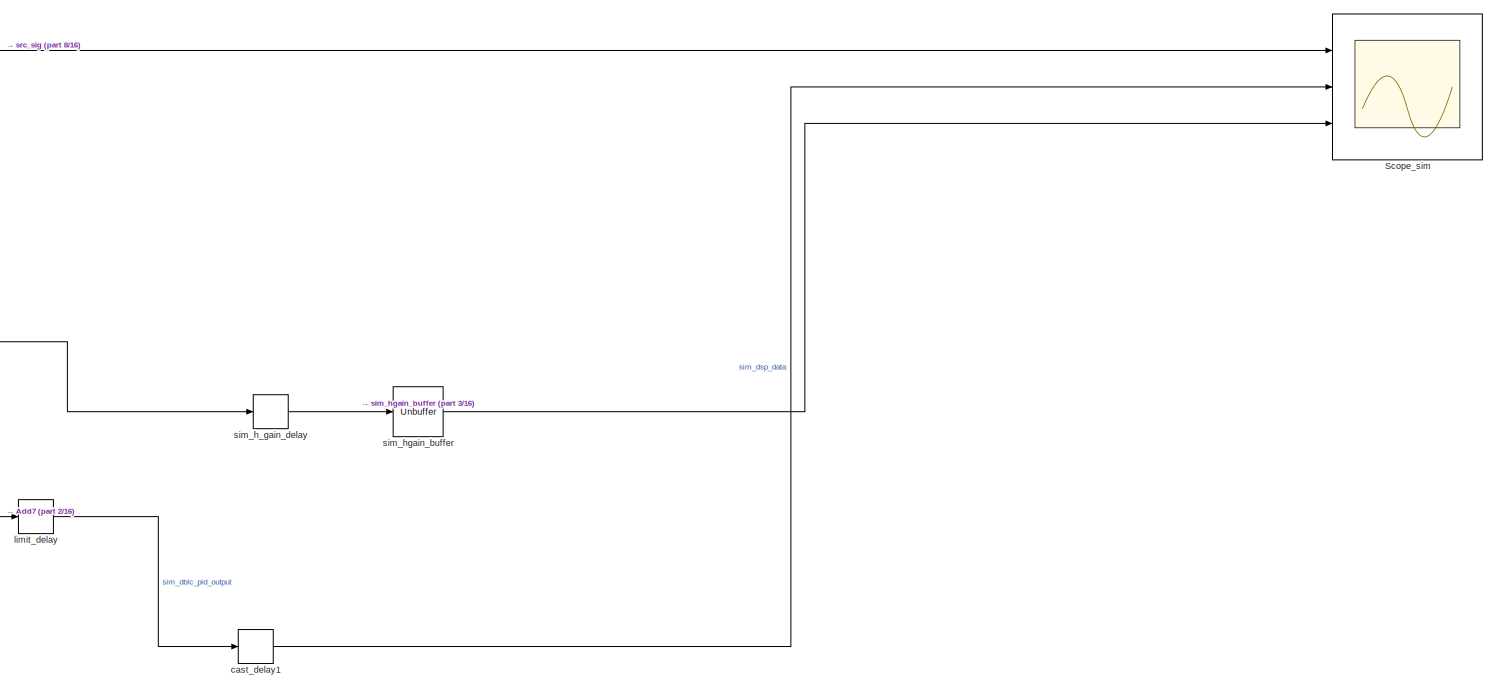
[diagram: root canvas - part 1/16, top right region]
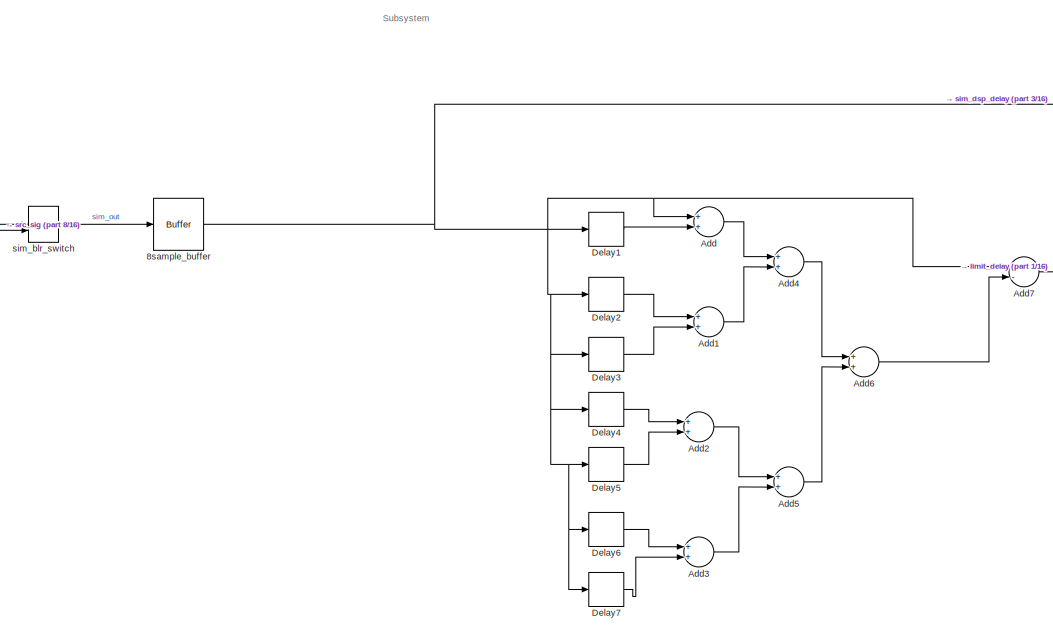
[diagram: root canvas - part 2/16, top center region]
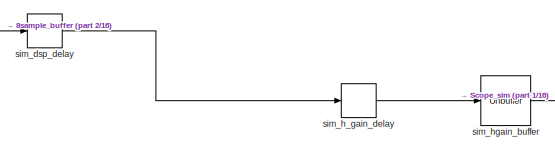
[diagram: root canvas - part 3/16, top center region]
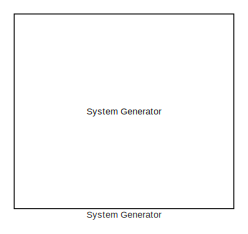
[diagram: root canvas - part 4/16, top left region]
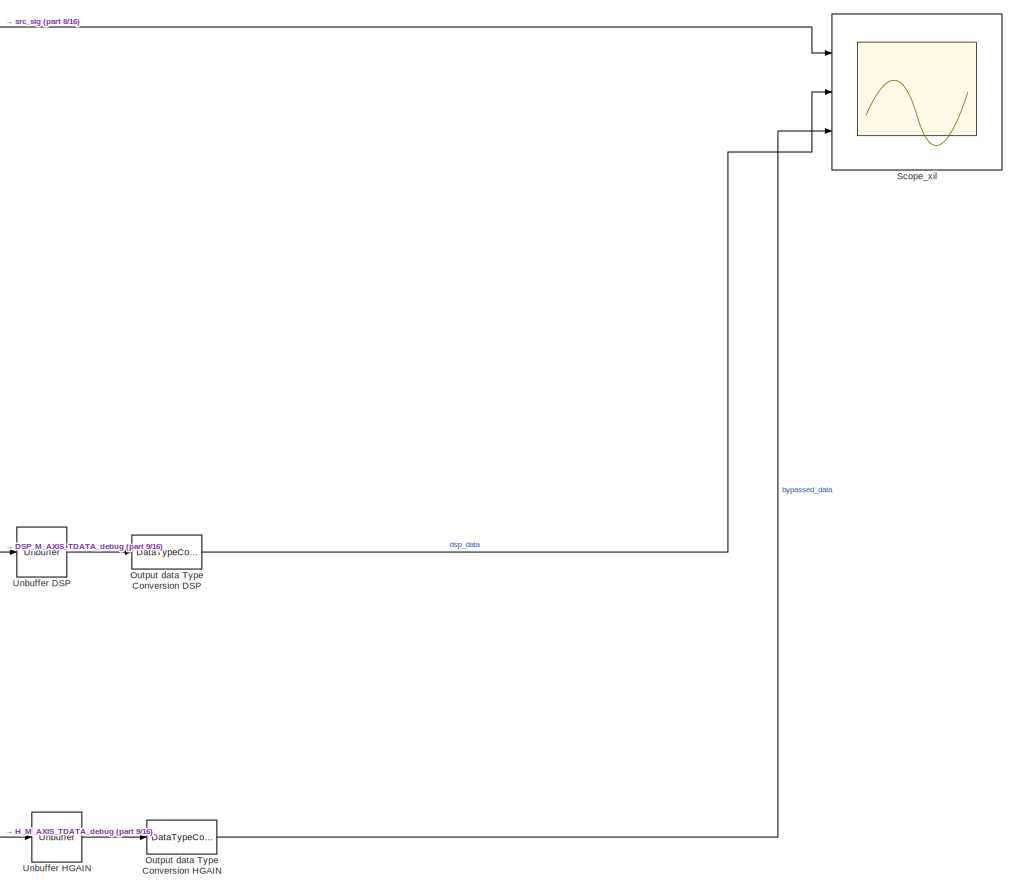
[diagram: root canvas - part 5/16, middle right region]
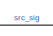
[diagram: root canvas - part 6/16, central region]
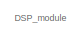
[diagram: root canvas - part 7/16, middle left region]
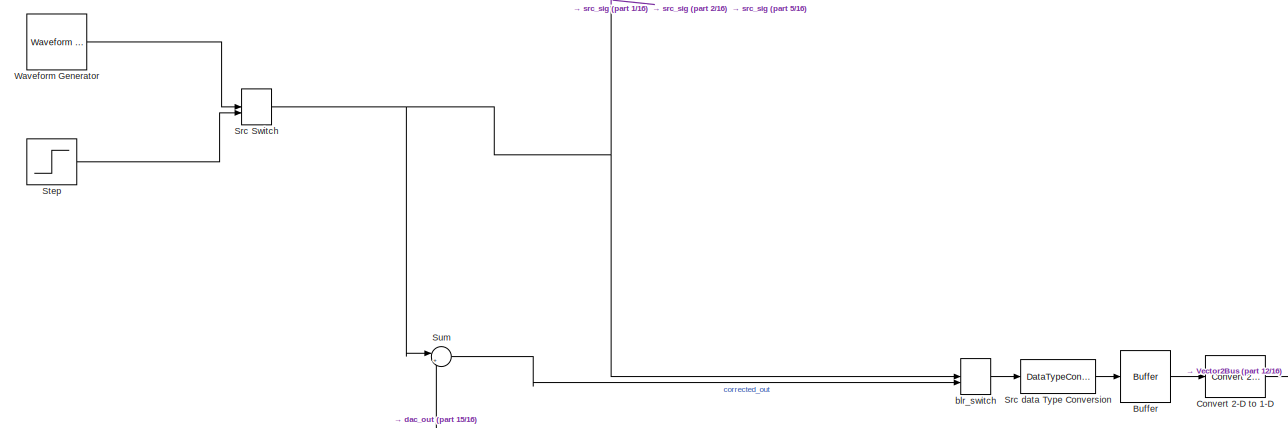
[diagram: root canvas - part 8/16, middle left region]
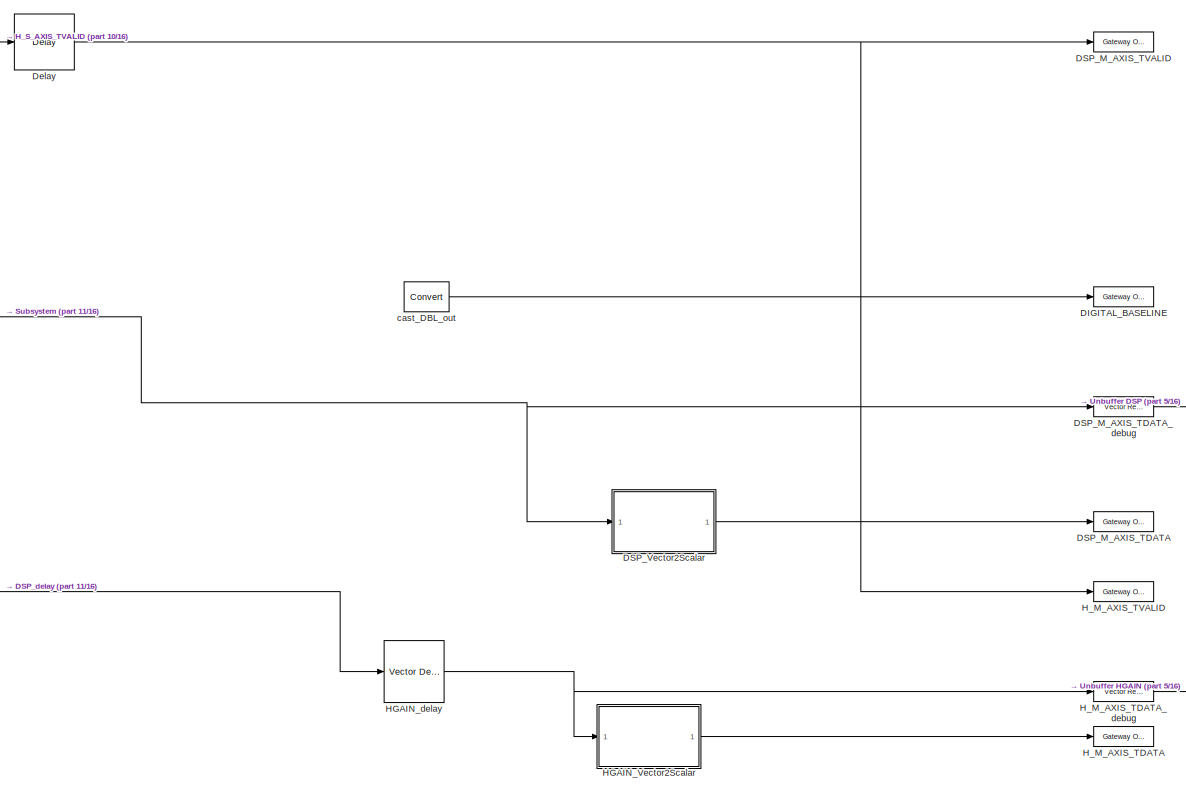
[diagram: root canvas - part 9/16, middle right region]
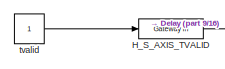
[diagram: root canvas - part 10/16, middle left region]
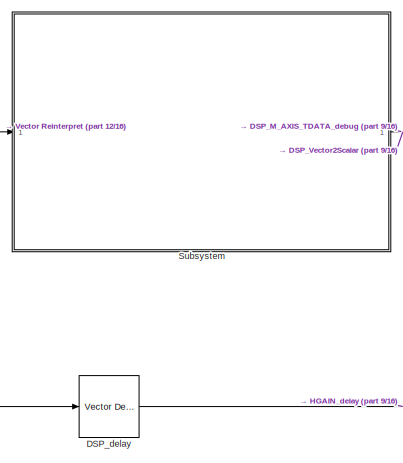
[diagram: root canvas - part 11/16, central region]
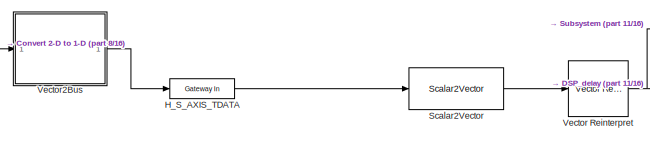
[diagram: root canvas - part 12/16, middle left region]
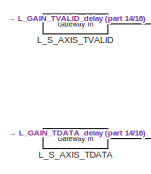
[diagram: root canvas - part 13/16, bottom left region]
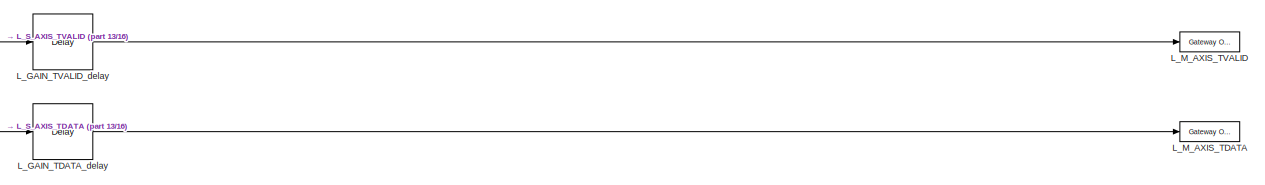
[diagram: root canvas - part 14/16, bottom right region]
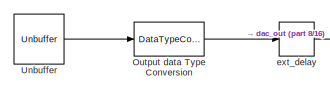
[diagram: root canvas - part 15/16, bottom right region]
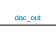
[diagram: root canvas - part 16/16, bottom center region]
MODEL slx_3c7e226fa12a
KIND model
CONFIG AbsTol = auto
CONFIG EnableMultiTasking = off
CONFIG FixedStep = auto
CONFIG MaxStep = auto
CONFIG MinStep = auto
CONFIG RelTol = 1e-3
CONFIG SampleTimeConstraint = Unconstrained
CONFIG Solver = VariableStepAuto
CONFIG SolverName = VariableStepAuto
CONFIG StartTime = 0.0
CONFIG StopTime = 100e-6
BLOCK [Reference]  System Generator  REF=xbsIndex_r4/ System Generator
  AttributesFormatString = System\nGenerator
  Ports = []
  SourceBlock = xbsIndex_r4/ System Generator
  SourceType = Xilinx System Generator Block
  Tag = genX
  UserDataPersistent = on
BLOCK [Buffer] 8sample_buffer
  Commented = on
  N = 8
  OutputFrames = off
BLOCK [Sum] Add
  Commented = on
  InputSameDT = off
  OutDataTypeStr = Inherit: Inherit via internal rule
  Ports = [2, 1]
  SaturateOnIntegerOverflow = off
BLOCK [Sum] Add1
  Commented = on
  InputSameDT = off
  OutDataTypeStr = Inherit: Inherit via internal rule
  Ports = [2, 1]
  SaturateOnIntegerOverflow = off
BLOCK [Sum] Add2
  Commented = on
  InputSameDT = off
  OutDataTypeStr = Inherit: Inherit via internal rule
  Ports = [2, 1]
  SaturateOnIntegerOverflow = off
BLOCK [Sum] Add3
  Commented = on
  InputSameDT = off
  OutDataTypeStr = Inherit: Inherit via internal rule
  Ports = [2, 1]
  SaturateOnIntegerOverflow = off
BLOCK [Sum] Add4
  Commented = on
  InputSameDT = off
  OutDataTypeStr = Inherit: Inherit via internal rule
  Ports = [2, 1]
  SaturateOnIntegerOverflow = off
BLOCK [Sum] Add5
  Commented = on
  InputSameDT = off
  OutDataTypeStr = Inherit: Inherit via internal rule
  Ports = [2, 1]
  SaturateOnIntegerOverflow = off
BLOCK [Sum] Add6
  Commented = on
  InputSameDT = off
  OutDataTypeStr = Inherit: Inherit via internal rule
  Ports = [2, 1]
  SaturateOnIntegerOverflow = off
BLOCK [Sum] Add7
  Commented = on
  InputSameDT = off
  Inputs = +-
  OutDataTypeStr = Inherit: Inherit via internal rule
  Ports = [2, 1]
  SaturateOnIntegerOverflow = off
BLOCK [Buffer] Buffer
  N = 8
  OutputFrames = off
BLOCK [Reference] Convert 2-D to 1-D  REF=dspsigattribs/Convert 2-D to 1-D
  Ports = [1, 1]
  SourceBlock = dspsigattribs/Convert 2-D to 1-D
  SourceProductBaseCode = DS
  SourceProductName = DSP System Toolbox
  SourceType = Convert 2-D to 1-D
BLOCK [Reference] DIGITAL_BASELINE  REF=xbsIndex_r4/Gateway Out
  Commented = on
  Ports = [1, 1]
  SourceBlock = xbsIndex_r4/Gateway Out
  SourceType = Xilinx Gateway Out Block
BLOCK [Reference] DSP_M_AXIS_TDATA  REF=xbsIndex_r4/Gateway Out
  Ports = [1, 1]
  SourceBlock = xbsIndex_r4/Gateway Out
  SourceType = Xilinx Gateway Out Block
BLOCK [Reference] DSP_M_AXIS_TDATA_debug  REF=xrbsSSR_Library/Vector Real Gateway Out
  Ports = [1, 1]
  SourceBlock = xrbsSSR_Library/Vector Real Gateway Out
  SourceProductName = Xilinx SSR Blockset
  SourceType = Xilinx Vector Gateway Out Block
BLOCK [Reference] DSP_M_AXIS_TVALID  REF=xbsIndex_r4/Gateway Out
  Ports = [1, 1]
  SourceBlock = xbsIndex_r4/Gateway Out
  SourceType = Xilinx Gateway Out Block
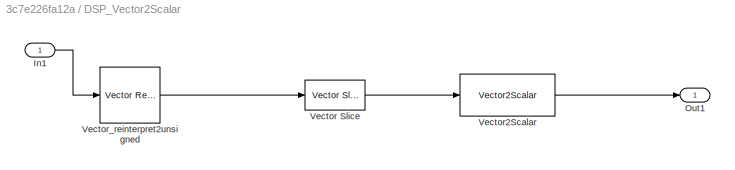
BLOCK [SubSystem] DSP_Vector2Scalar
  Ports = [1, 1]
  RequestExecContextInheritance = off
BLOCK [Inport] DSP_Vector2Scalar/In1
  IconDisplay = Port number
BLOCK [Outport] DSP_Vector2Scalar/Out1
  IconDisplay = Port number
BLOCK [Reference] DSP_Vector2Scalar/Vector Slice  REF=xrbsSSR_Library/Vector Slice
  Ports = [1, 1]
  SourceBlock = xrbsSSR_Library/Vector Slice
  SourceProductName = Xilinx SSR Blockset
  SourceType = Xilinx Vector Bit Slice Extractor Block
BLOCK [Reference] DSP_Vector2Scalar/Vector2Scalar  REF=xrbsSSR_Library/Vector2Scalar
  Ports = [1, 1]
  SourceBlock = xrbsSSR_Library/Vector2Scalar
  SourceProductName = Xilinx SSR Blockset
  SourceType = Xilinx Vector2Scalar Block
BLOCK [Reference] DSP_Vector2Scalar/Vector_reinterpret2unsigned  REF=xrbsSSR_Library/Vector Reinterpret
  Ports = [1, 1]
  SourceBlock = xrbsSSR_Library/Vector Reinterpret
  SourceProductName = Xilinx SSR Blockset
  SourceType = Xilinx Vector Type Reinterpreter Block
BLOCK [Reference] DSP_delay  REF=xrbsSSR_Library/Vector Delay
  Ports = [1, 1]
  SourceBlock = xrbsSSR_Library/Vector Delay
  SourceProductName = Xilinx SSR Blockset
  SourceType = Xilinx Vector Delay Block
BLOCK [Reference] Delay  REF=xbsIndex_r4/Delay
  Ports = [1, 1]
  SourceBlock = xbsIndex_r4/Delay
  SourceType = Xilinx Delay Block
BLOCK [Delay] Delay1
  Commented = on
  InitialCondition = 0
  InputPortMap = u0
  Ports = [1, 1]
BLOCK [Delay] Delay2
  Commented = on
  DelayLength = 4
  InitialCondition = 0
  InputPortMap = u0
  Ports = [1, 1]
BLOCK [Delay] Delay3
  Commented = on
  DelayLength = 6
  InitialCondition = 0
  InputPortMap = u0
  Ports = [1, 1]
BLOCK [Delay] Delay4
  Commented = on
  DelayLength = 8
  InitialCondition = 0
  InputPortMap = u0
  Ports = [1, 1]
BLOCK [Delay] Delay5
  Commented = on
  DelayLength = 10
  InitialCondition = 0
  InputPortMap = u0
  Ports = [1, 1]
BLOCK [Delay] Delay6
  Commented = on
  DelayLength = 12
  InitialCondition = 0
  InputPortMap = u0
  Ports = [1, 1]
BLOCK [Delay] Delay7
  Commented = on
  DelayLength = 14
  InitialCondition = 0
  InputPortMap = u0
  Ports = [1, 1]
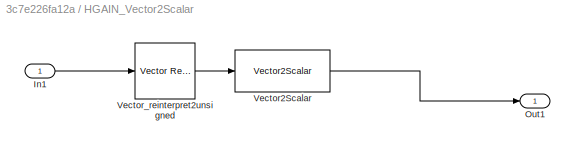
BLOCK [SubSystem] HGAIN_Vector2Scalar
  Ports = [1, 1]
  RequestExecContextInheritance = off
BLOCK [Inport] HGAIN_Vector2Scalar/In1
  IconDisplay = Port number
BLOCK [Outport] HGAIN_Vector2Scalar/Out1
  IconDisplay = Port number
BLOCK [Reference] HGAIN_Vector2Scalar/Vector2Scalar  REF=xrbsSSR_Library/Vector2Scalar
  Ports = [1, 1]
  SourceBlock = xrbsSSR_Library/Vector2Scalar
  SourceProductName = Xilinx SSR Blockset
  SourceType = Xilinx Vector2Scalar Block
BLOCK [Reference] HGAIN_Vector2Scalar/Vector_reinterpret2unsigned  REF=xrbsSSR_Library/Vector Reinterpret
  Ports = [1, 1]
  SourceBlock = xrbsSSR_Library/Vector Reinterpret
  SourceProductName = Xilinx SSR Blockset
  SourceType = Xilinx Vector Type Reinterpreter Block
BLOCK [Reference] HGAIN_delay  REF=xrbsSSR_Library/Vector Delay
  Ports = [1, 1]
  SourceBlock = xrbsSSR_Library/Vector Delay
  SourceProductName = Xilinx SSR Blockset
  SourceType = Xilinx Vector Delay Block
BLOCK [Reference] H_M_AXIS_TDATA  REF=xbsIndex_r4/Gateway Out
  Ports = [1, 1]
  SourceBlock = xbsIndex_r4/Gateway Out
  SourceType = Xilinx Gateway Out Block
BLOCK [Reference] H_M_AXIS_TDATA_debug  REF=xrbsSSR_Library/Vector Real Gateway Out
  Ports = [1, 1]
  SourceBlock = xrbsSSR_Library/Vector Real Gateway Out
  SourceProductName = Xilinx SSR Blockset
  SourceType = Xilinx Vector Gateway Out Block
BLOCK [Reference] H_M_AXIS_TVALID  REF=xbsIndex_r4/Gateway Out
  Ports = [1, 1]
  SourceBlock = xbsIndex_r4/Gateway Out
  SourceType = Xilinx Gateway Out Block
BLOCK [Reference] H_S_AXIS_TDATA  REF=xbsIndex_r4/Gateway In
  Ports = [1, 1]
  SourceBlock = xbsIndex_r4/Gateway In
  SourceType = Xilinx Gateway In Block
BLOCK [Reference] H_S_AXIS_TVALID  REF=xbsIndex_r4/Gateway In
  Ports = [1, 1]
  SourceBlock = xbsIndex_r4/Gateway In
  SourceType = Xilinx Gateway In Block
BLOCK [Reference] L_GAIN_TDATA_delay  REF=xbsIndex_r4/Delay
  Ports = [1, 1]
  SourceBlock = xbsIndex_r4/Delay
  SourceType = Xilinx Delay Block
BLOCK [Reference] L_GAIN_TVALID_delay  REF=xbsIndex_r4/Delay
  Ports = [1, 1]
  SourceBlock = xbsIndex_r4/Delay
  SourceType = Xilinx Delay Block
BLOCK [Reference] L_M_AXIS_TDATA  REF=xbsIndex_r4/Gateway Out
  Ports = [1, 1]
  SourceBlock = xbsIndex_r4/Gateway Out
  SourceType = Xilinx Gateway Out Block
BLOCK [Reference] L_M_AXIS_TVALID  REF=xbsIndex_r4/Gateway Out
  Ports = [1, 1]
  SourceBlock = xbsIndex_r4/Gateway Out
  SourceType = Xilinx Gateway Out Block
BLOCK [Reference] L_S_AXIS_TDATA  REF=xbsIndex_r4/Gateway In
  Ports = [1, 1]
  SourceBlock = xbsIndex_r4/Gateway In
  SourceType = Xilinx Gateway In Block
BLOCK [Reference] L_S_AXIS_TVALID  REF=xbsIndex_r4/Gateway In
  Ports = [1, 1]
  SourceBlock = xbsIndex_r4/Gateway In
  SourceType = Xilinx Gateway In Block
BLOCK [DataTypeConversion] Output data Type Conversion
  Commented = on
  OutDataTypeStr = double
  RndMeth = Floor
  SaturateOnIntegerOverflow = off
BLOCK [DataTypeConversion] Output data Type Conversion DSP
  OutDataTypeStr = double
  RndMeth = Floor
  SaturateOnIntegerOverflow = off
BLOCK [DataTypeConversion] Output data Type Conversion HGAIN
  OutDataTypeStr = double
  RndMeth = Floor
  SaturateOnIntegerOverflow = off
BLOCK [Reference] Scalar2Vector  REF=xrbsSSR_Library/Scalar2Vector
  Ports = [1, 1]
  SourceBlock = xrbsSSR_Library/Scalar2Vector
  SourceProductName = Xilinx SSR Blockset
  SourceType = Xilinx Scalar2Vector Block
BLOCK [Scope] Scope_sim
  Commented = on
  Floating = off
  NumInputPorts = 3
  Ports = [3]
  ScopeSpecificationString = Simulink.scopes.TimeScopeBlockCfg('CurrentConfiguration', extmgr.ConfigurationSet(extmgr.Configuration('Core','General UI',true),extmgr.Configuration('Core','Source UI',true),extmgr.Configuration('Sources','WiredSimulink',true,'DataLoggingVariableName','ScopeData1'),extmgr.Configuration('Visuals','Time Domain',true,'SerializedDisplays',{struct('MinYLimReal','-1152.00000','MaxYLimReal','128.00000',...<+2988ch>
BLOCK [Scope] Scope_xil
  Floating = off
  NumInputPorts = 3
  Ports = [3]
  ScopeSpecificationString = Simulink.scopes.TimeScopeBlockCfg('CurrentConfiguration', extmgr.ConfigurationSet(extmgr.Configuration('Core','General UI',true),extmgr.Configuration('Core','Source UI',true),extmgr.Configuration('Sources','WiredSimulink',true),extmgr.Configuration('Visuals','Time Domain',true,'SerializedDisplays',{struct('MinYLimReal','-1052.34602','MaxYLimReal','22.85797','YLabelReal','','MinYLimMag','  0.00000'...<+1587ch>
BLOCK [ManualSwitch] Src Switch
  CurrentSetting = 0
BLOCK [DataTypeConversion] Src data Type Conversion
  OutDataTypeStr = fixdt(1,16,4)
  OutMax = 2047
  OutMin = -2048
  RndMeth = Floor
  SaturateOnIntegerOverflow = off
BLOCK [Step] Step
  After = -1024
  SampleTime = 1e-9
  Time = 50e-6
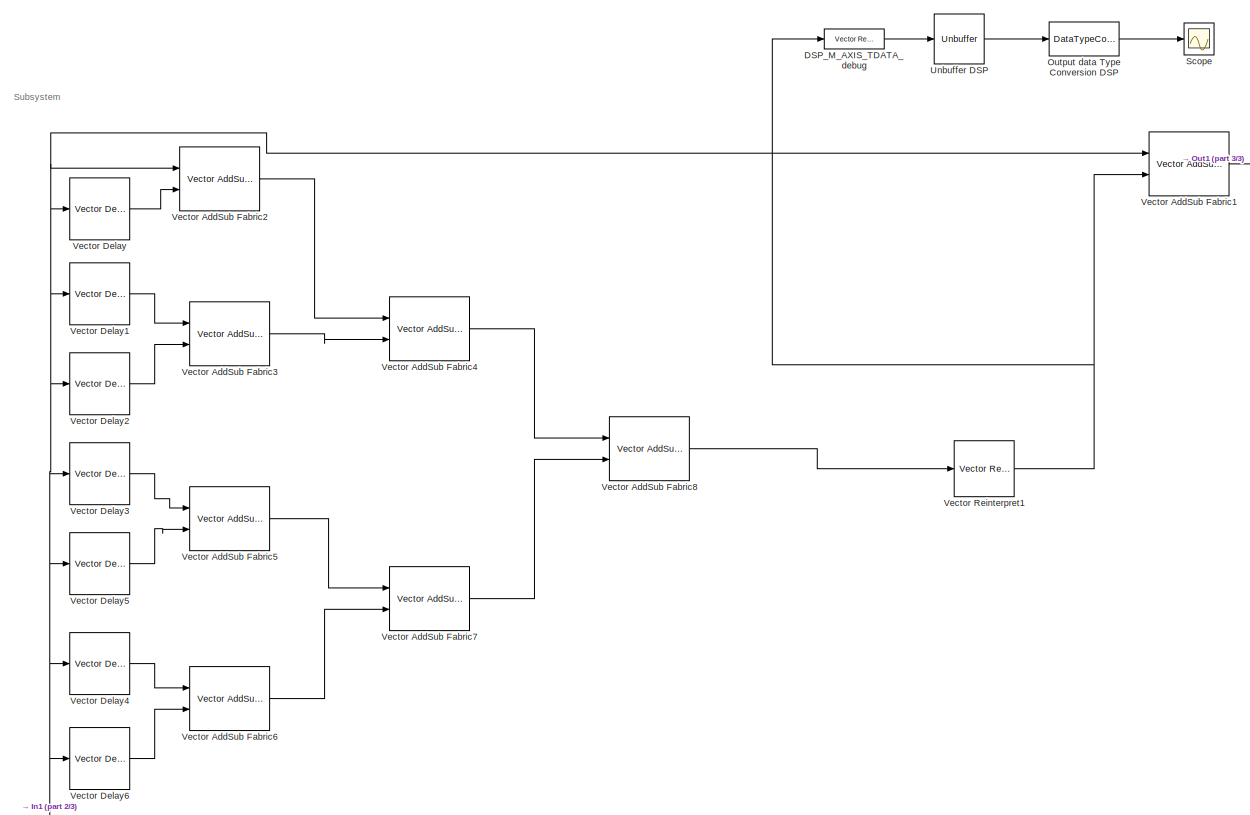
[diagram: Subsystem - part 1/3, central region]
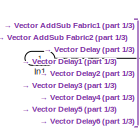
[diagram: Subsystem - part 2/3, bottom left region]
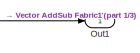
[diagram: Subsystem - part 3/3, bottom right region]
BLOCK [SubSystem] Subsystem
  Ports = [1, 1]
  RequestExecContextInheritance = off
BLOCK [Reference] Subsystem/DSP_M_AXIS_TDATA_debug  REF=xrbsSSR_Library/Vector Real Gateway Out
  Ports = [1, 1]
  SourceBlock = xrbsSSR_Library/Vector Real Gateway Out
  SourceProductName = Xilinx SSR Blockset
  SourceType = Xilinx Vector Gateway Out Block
BLOCK [Inport] Subsystem/In1
  IconDisplay = Port number
BLOCK [Outport] Subsystem/Out1
  IconDisplay = Port number
BLOCK [DataTypeConversion] Subsystem/Output data Type Conversion DSP
  OutDataTypeStr = double
  RndMeth = Floor
  SaturateOnIntegerOverflow = off
BLOCK [Scope] Subsystem/Scope
  Floating = off
  NumInputPorts = 1
  Ports = [1]
  ScopeSpecificationString = Simulink.scopes.TimeScopeBlockCfg('CurrentConfiguration', extmgr.ConfigurationSet(extmgr.Configuration('Core','General UI',true),extmgr.Configuration('Core','Source UI',true),extmgr.Configuration('Sources','WiredSimulink',true,'DataLoggingVariableName','ScopeData1'),extmgr.Configuration('Visuals','Time Domain',true,'SerializedDisplays',{struct('MinYLimReal','-1152.00000','MaxYLimReal','128.00000',...<+1410ch>
BLOCK [Unbuffer] Subsystem/Unbuffer DSP
  Ports = [1, 1]
BLOCK [Reference] Subsystem/Vector AddSub Fabric1  REF=xrbsSSR_Library/Vector AddSub Fabric
  Ports = [2, 1]
  SourceBlock = xrbsSSR_Library/Vector AddSub Fabric
  SourceProductName = Xilinx SSR Blockset
  SourceType = Xilinx Vector Adder/Subtracter Block
BLOCK [Reference] Subsystem/Vector AddSub Fabric2  REF=xrbsSSR_Library/Vector AddSub Fabric
  Ports = [2, 1]
  SourceBlock = xrbsSSR_Library/Vector AddSub Fabric
  SourceProductName = Xilinx SSR Blockset
  SourceType = Xilinx Vector Adder/Subtracter Block
BLOCK [Reference] Subsystem/Vector AddSub Fabric3  REF=xrbsSSR_Library/Vector AddSub Fabric
  Ports = [2, 1]
  SourceBlock = xrbsSSR_Library/Vector AddSub Fabric
  SourceProductName = Xilinx SSR Blockset
  SourceType = Xilinx Vector Adder/Subtracter Block
BLOCK [Reference] Subsystem/Vector AddSub Fabric4  REF=xrbsSSR_Library/Vector AddSub Fabric
  Ports = [2, 1]
  SourceBlock = xrbsSSR_Library/Vector AddSub Fabric
  SourceProductName = Xilinx SSR Blockset
  SourceType = Xilinx Vector Adder/Subtracter Block
BLOCK [Reference] Subsystem/Vector AddSub Fabric5  REF=xrbsSSR_Library/Vector AddSub Fabric
  Ports = [2, 1]
  SourceBlock = xrbsSSR_Library/Vector AddSub Fabric
  SourceProductName = Xilinx SSR Blockset
  SourceType = Xilinx Vector Adder/Subtracter Block
BLOCK [Reference] Subsystem/Vector AddSub Fabric6  REF=xrbsSSR_Library/Vector AddSub Fabric
  Ports = [2, 1]
  SourceBlock = xrbsSSR_Library/Vector AddSub Fabric
  SourceProductName = Xilinx SSR Blockset
  SourceType = Xilinx Vector Adder/Subtracter Block
BLOCK [Reference] Subsystem/Vector AddSub Fabric7  REF=xrbsSSR_Library/Vector AddSub Fabric
  Ports = [2, 1]
  SourceBlock = xrbsSSR_Library/Vector AddSub Fabric
  SourceProductName = Xilinx SSR Blockset
  SourceType = Xilinx Vector Adder/Subtracter Block
BLOCK [Reference] Subsystem/Vector AddSub Fabric8  REF=xrbsSSR_Library/Vector AddSub Fabric
  Ports = [2, 1]
  SourceBlock = xrbsSSR_Library/Vector AddSub Fabric
  SourceProductName = Xilinx SSR Blockset
  SourceType = Xilinx Vector Adder/Subtracter Block
BLOCK [Reference] Subsystem/Vector Delay  REF=xrbsSSR_Library/Vector Delay
  Ports = [1, 1]
  SourceBlock = xrbsSSR_Library/Vector Delay
  SourceProductName = Xilinx SSR Blockset
  SourceType = Xilinx Vector Delay Block
BLOCK [Reference] Subsystem/Vector Delay1  REF=xrbsSSR_Library/Vector Delay
  Ports = [1, 1]
  SourceBlock = xrbsSSR_Library/Vector Delay
  SourceProductName = Xilinx SSR Blockset
  SourceType = Xilinx Vector Delay Block
BLOCK [Reference] Subsystem/Vector Delay2  REF=xrbsSSR_Library/Vector Delay
  Ports = [1, 1]
  SourceBlock = xrbsSSR_Library/Vector Delay
  SourceProductName = Xilinx SSR Blockset
  SourceType = Xilinx Vector Delay Block
BLOCK [Reference] Subsystem/Vector Delay3  REF=xrbsSSR_Library/Vector Delay
  Ports = [1, 1]
  SourceBlock = xrbsSSR_Library/Vector Delay
  SourceProductName = Xilinx SSR Blockset
  SourceType = Xilinx Vector Delay Block
BLOCK [Reference] Subsystem/Vector Delay4  REF=xrbsSSR_Library/Vector Delay
  Ports = [1, 1]
  SourceBlock = xrbsSSR_Library/Vector Delay
  SourceProductName = Xilinx SSR Blockset
  SourceType = Xilinx Vector Delay Block
BLOCK [Reference] Subsystem/Vector Delay5  REF=xrbsSSR_Library/Vector Delay
  Ports = [1, 1]
  SourceBlock = xrbsSSR_Library/Vector Delay
  SourceProductName = Xilinx SSR Blockset
  SourceType = Xilinx Vector Delay Block
BLOCK [Reference] Subsystem/Vector Delay6  REF=xrbsSSR_Library/Vector Delay
  Ports = [1, 1]
  SourceBlock = xrbsSSR_Library/Vector Delay
  SourceProductName = Xilinx SSR Blockset
  SourceType = Xilinx Vector Delay Block
BLOCK [Reference] Subsystem/Vector Reinterpret1  REF=xrbsSSR_Library/Vector Reinterpret
  Ports = [1, 1]
  SourceBlock = xrbsSSR_Library/Vector Reinterpret
  SourceProductName = Xilinx SSR Blockset
  SourceType = Xilinx Vector Type Reinterpreter Block
BLOCK [Sum] Sum
  AccumDataTypeStr = Inherit: Same as first input
  IconShape = round
  InputSameDT = off
  Inputs = |+-
  OutDataTypeStr = Inherit: Inherit via internal rule
  Ports = [2, 1]
  SaturateOnIntegerOverflow = off
BLOCK [Unbuffer] Unbuffer
  Commented = on
  Ports = [1, 1]
BLOCK [Unbuffer] Unbuffer DSP
  Ports = [1, 1]
BLOCK [Unbuffer] Unbuffer HGAIN
  Ports = [1, 1]
BLOCK [Reference] Vector Reinterpret  REF=xrbsSSR_Library/Vector Reinterpret
  Ports = [1, 1]
  SourceBlock = xrbsSSR_Library/Vector Reinterpret
  SourceProductName = Xilinx SSR Blockset
  SourceType = Xilinx Vector Type Reinterpreter Block
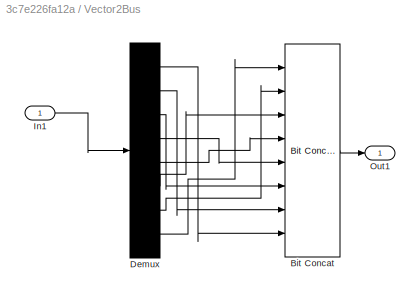
BLOCK [SubSystem] Vector2Bus
  Ports = [1, 1]
  RequestExecContextInheritance = off
BLOCK [Reference] Vector2Bus/Bit Concat  REF=hdlsllib/Logic and Bit
Operations/Bit Concat
  Ports = [8, 1]
  SourceBlock = hdlsllib/Logic and Bit\nOperations/Bit Concat
  SourceProductBaseCode = HD
  SourceProductName = HDL Coder
  SourceType = Bit Concat
BLOCK [Demux] Vector2Bus/Demux
  DisplayOption = bar
  Outputs = 8
  Ports = [1, 8]
BLOCK [Inport] Vector2Bus/In1
  IconDisplay = Port number
BLOCK [Outport] Vector2Bus/Out1
  IconDisplay = Port number
BLOCK [Reference] Waveform Generator  REF=simulink/Sources/Waveform
Generator
  Ports = [0, 1]
  SourceBlock = simulink/Sources/Waveform\nGenerator
  SourceProductBaseCode = SL
  SourceProductName = Simulink
  SourceType = WaveformGenerator
BLOCK [ManualSwitch] blr_switch
  CurrentSetting = 0
BLOCK [Reference] cast_DBL_out  REF=xbsIndex_r4/Convert
  Commented = on
  Ports = [1, 1]
  SourceBlock = xbsIndex_r4/Convert
  SourceType = Xilinx Type Converter Block
BLOCK [Delay] cast_delay1
  Commented = on
  DelayLength = 1
  InitialCondition = 0
  InputPortMap = u0
  InputProcessing = Columns as channels (frame based)
  Ports = [1, 1]
BLOCK [Delay] ext_delay
  Commented = on
  DelayLength = 3
  InitialCondition = 0
  InputPortMap = u0
  Ports = [1, 1]
BLOCK [Delay] limit_delay
  Commented = on
  DelayLength = 1
  InitialCondition = 0
  InputPortMap = u0
  Ports = [1, 1]
BLOCK [ManualSwitch] sim_blr_switch
  Commented = on
  CurrentSetting = 0
BLOCK [Delay] sim_dsp_delay
  Commented = on
  DelayLength = 6
  InitialCondition = 0
  InputPortMap = u0
  Ports = [1, 1]
  SampleTime = 8e-9
BLOCK [Delay] sim_h_gain_delay
  Commented = on
  DelayLength = 1
  InitialCondition = 0
  InputPortMap = u0
  Ports = [1, 1]
BLOCK [Unbuffer] sim_hgain_buffer
  Commented = on
  Ports = [1, 1]
BLOCK [Constant] tvalid
  OutDataTypeStr = Inherit: Inherit via back propagation
  SampleTime = 1/125e6
  VectorParams1D = off
ANNOTATION (root): DSP_module
ANNOTATION (root): Subsystem
ANNOTATION Subsystem: Subsystem
NET 8sample_buffer:1 -> Add7:1, Add:1, Delay1:1, Delay2:1, Delay3:1, Delay4:1, Delay5:1, Delay6:1, Delay7:1, sim_dsp_delay:1
LINE Add1:1 -> Add4:2
LINE Add2:1 -> Add5:1
LINE Add3:1 -> Add5:2
LINE Add4:1 -> Add6:1
LINE Add5:1 -> Add6:2
LINE Add6:1 -> Add7:2
LINE Add7:1 -> limit_delay:1
LINE Add:1 -> Add4:1
LINE Buffer:1 -> Convert 2-D to 1-D:1
LINE Convert 2-D to 1-D:1 -> Vector2Bus:1
LINE DSP_M_AXIS_TDATA_debug:1 -> Unbuffer DSP:1
LINE DSP_Vector2Scalar/In1:1 -> DSP_Vector2Scalar/Vector_reinterpret2unsigned:1
LINE DSP_Vector2Scalar/Vector Slice:1 -> DSP_Vector2Scalar/Vector2Scalar:1
LINE DSP_Vector2Scalar/Vector2Scalar:1 -> DSP_Vector2Scalar/Out1:1
LINE DSP_Vector2Scalar/Vector_reinterpret2unsigned:1 -> DSP_Vector2Scalar/Vector Slice:1
LINE DSP_Vector2Scalar:1 -> DSP_M_AXIS_TDATA:1
LINE DSP_delay:1 -> HGAIN_delay:1
LINE Delay1:1 -> Add:2
LINE Delay2:1 -> Add1:1
LINE Delay3:1 -> Add1:2
LINE Delay4:1 -> Add2:1
LINE Delay5:1 -> Add2:2
LINE Delay6:1 -> Add3:1
LINE Delay7:1 -> Add3:2
NET Delay:1 -> DSP_M_AXIS_TVALID:1, H_M_AXIS_TVALID:1
LINE HGAIN_Vector2Scalar/In1:1 -> HGAIN_Vector2Scalar/Vector_reinterpret2unsigned:1
LINE HGAIN_Vector2Scalar/Vector2Scalar:1 -> HGAIN_Vector2Scalar/Out1:1
LINE HGAIN_Vector2Scalar/Vector_reinterpret2unsigned:1 -> HGAIN_Vector2Scalar/Vector2Scalar:1
LINE HGAIN_Vector2Scalar:1 -> H_M_AXIS_TDATA:1
NET HGAIN_delay:1 -> HGAIN_Vector2Scalar:1, H_M_AXIS_TDATA_debug:1
LINE H_M_AXIS_TDATA_debug:1 -> Unbuffer HGAIN:1
LINE H_S_AXIS_TDATA:1 -> Scalar2Vector:1
LINE H_S_AXIS_TVALID:1 -> Delay:1
LINE L_GAIN_TDATA_delay:1 -> L_M_AXIS_TDATA:1
LINE L_GAIN_TVALID_delay:1 -> L_M_AXIS_TVALID:1
LINE L_S_AXIS_TDATA:1 -> L_GAIN_TDATA_delay:1
LINE L_S_AXIS_TVALID:1 -> L_GAIN_TVALID_delay:1
LINE Output data Type Conversion DSP:1 -> Scope_xil:2
LINE Output data Type Conversion HGAIN:1 -> Scope_xil:3
LINE Output data Type Conversion:1 -> ext_delay:1
LINE Scalar2Vector:1 -> Vector Reinterpret:1
NET Src Switch:1 -> Scope_sim:1, Scope_xil:1, Sum:1, blr_switch:1, sim_blr_switch:1, sim_blr_switch:2
LINE Src data Type Conversion:1 -> Buffer:1
LINE Step:1 -> Src Switch:2
LINE Subsystem/DSP_M_AXIS_TDATA_debug:1 -> Subsystem/Unbuffer DSP:1
NET Subsystem/In1:1 -> Subsystem/Vector AddSub Fabric1:1, Subsystem/Vector AddSub Fabric2:1, Subsystem/Vector Delay1:1, Subsystem/Vector Delay2:1, Subsystem/Vector Delay3:1, Subsystem/Vector Delay4:1, Subsystem/Vector Delay5:1, Subsystem/Vector Delay6:1, Subsystem/Vector Delay:1
LINE Subsystem/Output data Type Conversion DSP:1 -> Subsystem/Scope:1
LINE Subsystem/Unbuffer DSP:1 -> Subsystem/Output data Type Conversion DSP:1
LINE Subsystem/Vector AddSub Fabric1:1 -> Subsystem/Out1:1
LINE Subsystem/Vector AddSub Fabric2:1 -> Subsystem/Vector AddSub Fabric4:1
LINE Subsystem/Vector AddSub Fabric3:1 -> Subsystem/Vector AddSub Fabric4:2
LINE Subsystem/Vector AddSub Fabric4:1 -> Subsystem/Vector AddSub Fabric8:1
LINE Subsystem/Vector AddSub Fabric5:1 -> Subsystem/Vector AddSub Fabric7:1
LINE Subsystem/Vector AddSub Fabric6:1 -> Subsystem/Vector AddSub Fabric7:2
LINE Subsystem/Vector AddSub Fabric7:1 -> Subsystem/Vector AddSub Fabric8:2
LINE Subsystem/Vector AddSub Fabric8:1 -> Subsystem/Vector Reinterpret1:1
LINE Subsystem/Vector Delay1:1 -> Subsystem/Vector AddSub Fabric3:1
LINE Subsystem/Vector Delay2:1 -> Subsystem/Vector AddSub Fabric3:2
LINE Subsystem/Vector Delay3:1 -> Subsystem/Vector AddSub Fabric5:1
LINE Subsystem/Vector Delay4:1 -> Subsystem/Vector AddSub Fabric6:1
LINE Subsystem/Vector Delay5:1 -> Subsystem/Vector AddSub Fabric5:2
LINE Subsystem/Vector Delay6:1 -> Subsystem/Vector AddSub Fabric6:2
LINE Subsystem/Vector Delay:1 -> Subsystem/Vector AddSub Fabric2:2
NET Subsystem/Vector Reinterpret1:1 -> Subsystem/DSP_M_AXIS_TDATA_debug:1, Subsystem/Vector AddSub Fabric1:2
NET Subsystem:1 -> DSP_M_AXIS_TDATA_debug:1, DSP_Vector2Scalar:1
LINE Sum:1 -> blr_switch:2
LINE Unbuffer DSP:1 -> Output data Type Conversion DSP:1
LINE Unbuffer HGAIN:1 -> Output data Type Conversion HGAIN:1
LINE Unbuffer:1 -> Output data Type Conversion:1
NET Vector Reinterpret:1 -> DSP_delay:1, Subsystem:1
LINE Vector2Bus/Bit Concat:1 -> Vector2Bus/Out1:1
LINE Vector2Bus/Demux:1 -> Vector2Bus/Bit Concat:8
LINE Vector2Bus/Demux:2 -> Vector2Bus/Bit Concat:7
LINE Vector2Bus/Demux:3 -> Vector2Bus/Bit Concat:6
LINE Vector2Bus/Demux:4 -> Vector2Bus/Bit Concat:5
LINE Vector2Bus/Demux:5 -> Vector2Bus/Bit Concat:4
LINE Vector2Bus/Demux:6 -> Vector2Bus/Bit Concat:3
LINE Vector2Bus/Demux:7 -> Vector2Bus/Bit Concat:2
LINE Vector2Bus/Demux:8 -> Vector2Bus/Bit Concat:1
LINE Vector2Bus/In1:1 -> Vector2Bus/Demux:1
LINE Vector2Bus:1 -> H_S_AXIS_TDATA:1
LINE Waveform Generator:1 -> Src Switch:1
LINE blr_switch:1 -> Src data Type Conversion:1
LINE cast_DBL_out:1 -> DIGITAL_BASELINE:1
LINE cast_delay1:1 -> Scope_sim:2
LINE ext_delay:1 -> Sum:2
LINE limit_delay:1 -> cast_delay1:1
LINE sim_blr_switch:1 -> 8sample_buffer:1
LINE sim_dsp_delay:1 -> sim_h_gain_delay:1
LINE sim_h_gain_delay:1 -> sim_hgain_buffer:1
LINE sim_hgain_buffer:1 -> Scope_sim:3
LINE tvalid:1 -> H_S_AXIS_TVALID:1
note: NET lines group one-source signal fan-out (src -> all destinations, sorted); 1:1 wires keep LINE
